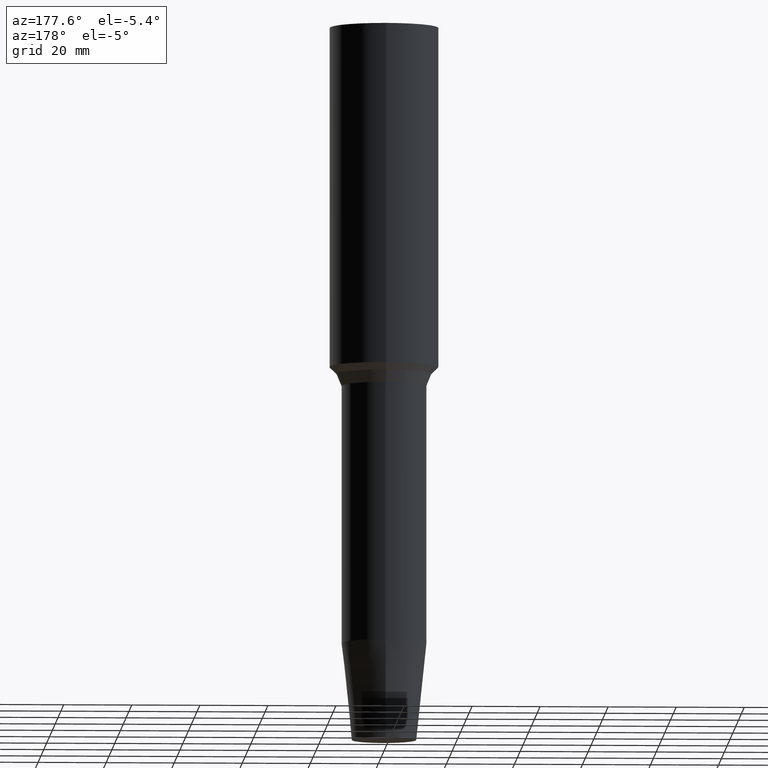
[diagram: clean part render]
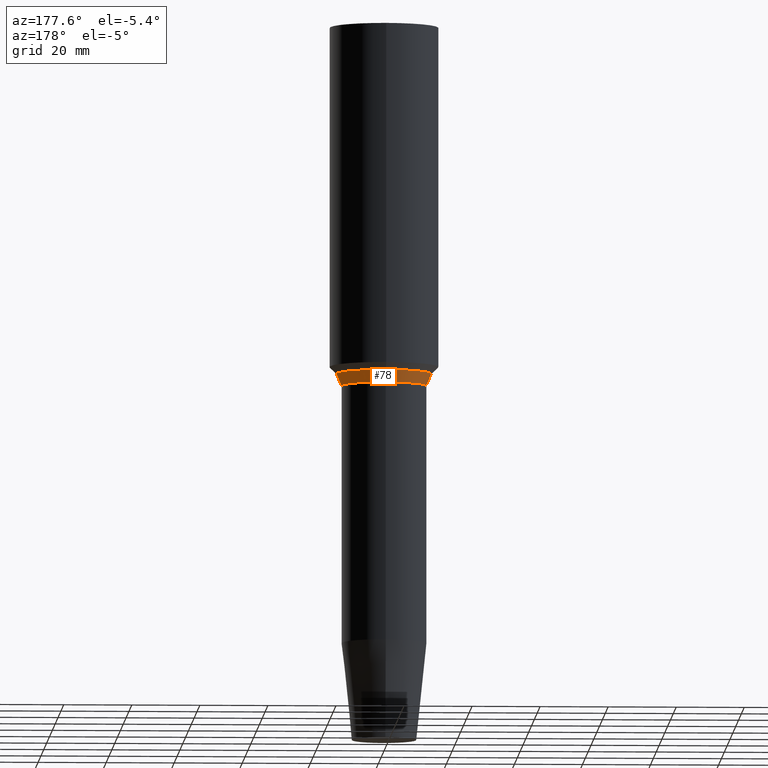
[diagram: same view with one face highlighted and labeled with its STEP entity id]
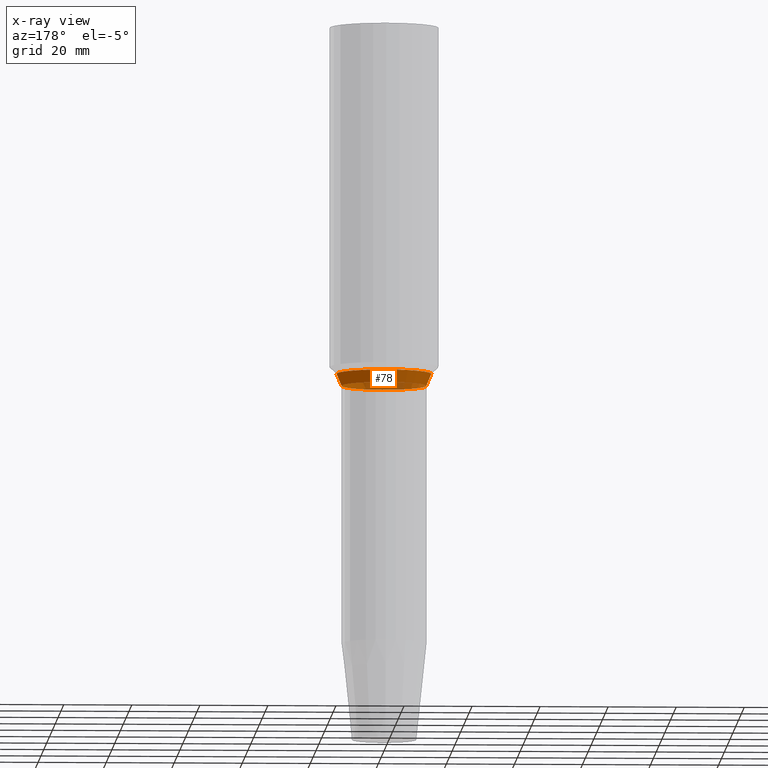
[diagram: x-ray of the same camera — body ghosted, the highlighted face saturated]
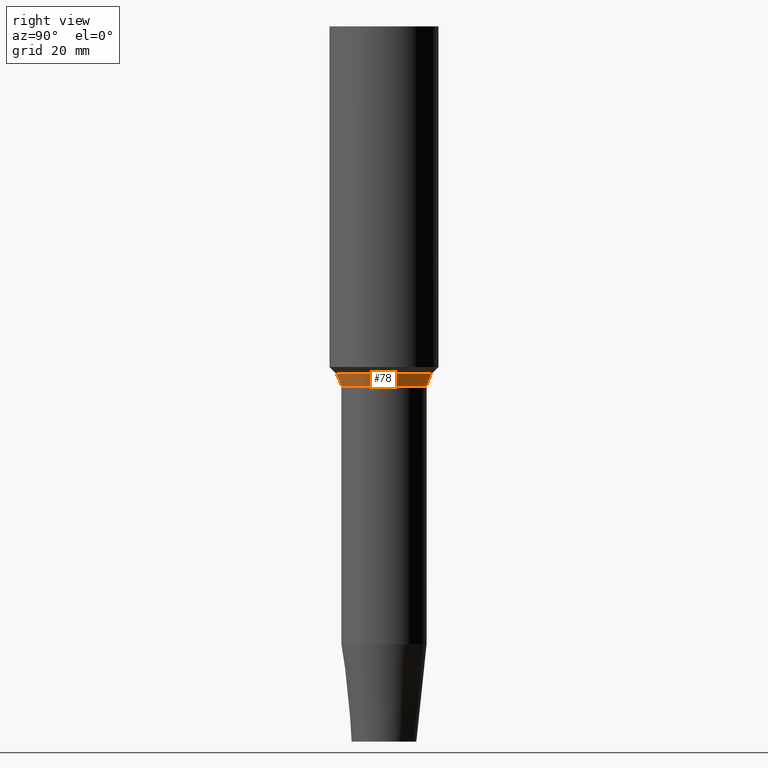
[diagram: same view with one face highlighted and labeled with its STEP entity id]
A machine part, auxiliary view. The second image highlights one B-rep face of the part: STEP entity #78.
The next image is the same camera in x-ray: the body ghosted, the highlighted face saturated — about 18% of this face is hidden behind the body in this view.
A second angle (right view) of the same face is appended — the face is thin or edge-on in the first view.
In plain terms, the highlighted conical surface has half-angle 22.5 deg.
Its self-contained STEP definition (entity closure, byte-faithful):
#78=ADVANCED_FACE('',(#91,#92),#93,.T.);
#91=FACE_BOUND('',#110,.T.);
#92=FACE_BOUND('',#111,.T.);
#93=CONICAL_SURFACE('',#112,13.2322330470337,0.392699081698582);
#110=EDGE_LOOP('',(#135));
#111=EDGE_LOOP('',(#136));
#112=AXIS2_PLACEMENT_3D('',#137,#138,#139);
#135=ORIENTED_EDGE('',*,*,#157,.F.);
#136=ORIENTED_EDGE('',*,*,#156,.T.);
#137=CARTESIAN_POINT('',(-6.50267238415841E-015,1.54473557562813E-014,106.196699141105));
#138=DIRECTION('',(-6.12323399573677E-017,1.45459848387155E-016,1.0));
#139=DIRECTION('',(4.07969415582038E-033,1.0,-1.45459848387155E-016));
#156=EDGE_CURVE('',#164,#164,#165,.T.);
#157=EDGE_CURVE('',#166,#166,#167,.T.);
#164=VERTEX_POINT('',#176);
#165=CIRCLE('',#177,13.964466094067);
#166=VERTEX_POINT('',#178);
#167=CIRCLE('',#179,12.5000000000004);
#176=CARTESIAN_POINT('',(-6.61091689118784E-015,13.964466094067,107.964466094071));
#177=AXIS2_PLACEMENT_3D('',#190,#191,#192);
#178=CARTESIAN_POINT('',(-6.39442787712898E-015,12.5000000000004,104.428932188138));
#179=AXIS2_PLACEMENT_3D('',#193,#194,#195);
#190=CARTESIAN_POINT('',(-6.61091689118784E-015,1.57044948692436E-014,107.964466094071));
#191=DIRECTION('',(6.12323399573677E-017,-1.45459848387154E-016,-1.0));
#192=DIRECTION('',(4.07969415582038E-033,1.0,-1.45459848387154E-016));
#193=CARTESIAN_POINT('',(-6.39442787712898E-015,1.5190216643319E-014,104.428932188138));
#194=DIRECTION('',(6.12323399573677E-017,-1.45459848387155E-016,-1.0));
#195=DIRECTION('',(4.07969415582038E-033,1.0,-1.45459848387155E-016));